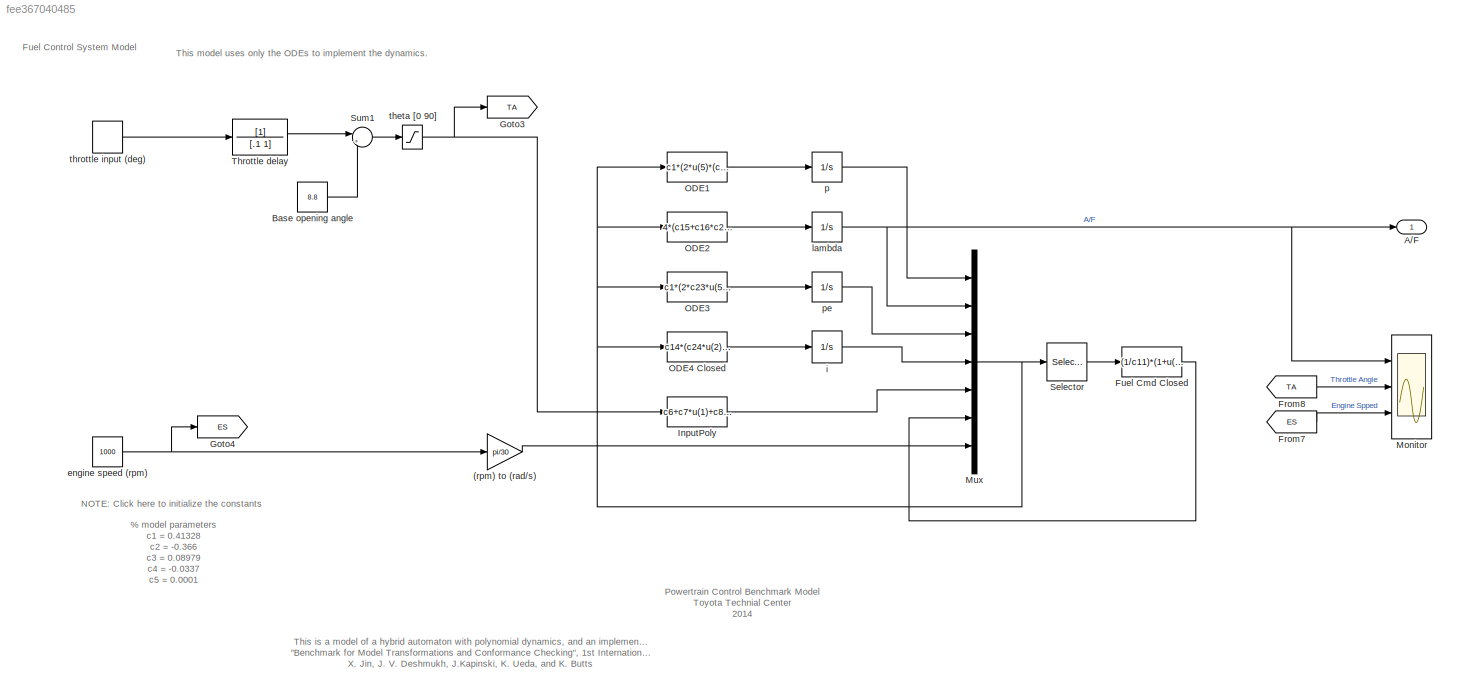
MODEL slx_fee367040485
KIND model
CONFIG AbsTol = 1e-6
CONFIG EnableMultiTasking = off
CONFIG FixedStep = .00005
CONFIG MaxStep = auto
CONFIG MinStep = auto
CONFIG RelTol = 1e-6
CONFIG SampleTimeConstraint = Unconstrained
CONFIG Solver = ode15s
CONFIG SolverName = ode15s
CONFIG StartTime = 0.0
CONFIG StopTime = 50
BLOCK [Gain] (rpm) to (rad//s)
  Gain = pi/30
  OutDataTypeStr = Inherit: Inherit via internal rule
  ParamDataTypeStr = Inherit: Inherit via internal rule
  SaturateOnIntegerOverflow = off
BLOCK [Outport] A//F
  IconDisplay = Port number
BLOCK [Constant] Base opening angle
  Value = 8.8
BLOCK [From] From7
  GotoTag = ES
BLOCK [From] From8
  GotoTag = TA
BLOCK [Fcn] Fuel Cmd Closed
  Expr = (1/c11)*(1+u(4)+c13*(c24*u(2)-c11))*(c2+c3*u(6)*u(3)+c4*u(6)*u(3)^2+c5*u(3)*u(6)^2)
BLOCK [Goto] Goto3
  GotoTag = TA
BLOCK [Goto] Goto4
  GotoTag = ES
BLOCK [Fcn] InputPoly
  Expr = c6+c7*u(1)+c8*u(1)^2+c9*u(1)^3
BLOCK [Scope] Monitor
  Floating = off
  NumInputPorts = 3
  Ports = [3]
  ScopeSpecificationString = C++SS(StrPVP('Location','[194, 875, 1419, 1499]'),StrPVP('Open','off'),StrPVP('ZoomMode','xonly'),MxPVP('AxesTitles',54,'struct(''axes1'',''%<SignalLabel>'',''axes2'',''%<SignalLabel>'',''axes3'',''%<SignalLabel>'')'),MxPVP('ScopeGraphics',57,'struct(''FigureColor'',''[0.501960784313725 0.501960784313725 0.501960784313725]'',''AxesColor'',''[0 0 0]'',''AxesTickColor'',''[1 1 1]'',''LineColors'',''...<+453ch>
BLOCK [Mux] Mux
  DisplayOption = bar
  Inputs = 7
  Ports = [7, 1]
BLOCK [Fcn] ODE1
  Expr = c1*(2*u(5)*(c20*u(1)^2+c21*u(1)+c22) - c12*(c2+c3*u(7)*u(1)+c4*u(7)*u(1)^2+c5*u(1)*u(7)^2))
BLOCK [Fcn] ODE2
  Expr = 4*(c15+c16*c25*u(6)+c17*c25^2*u(6)^2+c18*(c12*(c2+c3*u(7)*u(1)+c4*u(7)*u(1)^2+c5*u(1)*u(7)^2)) +c19*(c12*(c2+c3*u(7)*u(1)+c4*u(7)*u(1)^2+c5*u(1)*u(7)^2)) *c25*u(6)-u(2))
BLOCK [Fcn] ODE3
  Expr = c1*(2*c23*u(5)*(c20*u(1)^2+c21*u(1)+c22)-(c2+c3*u(7)*u(3)+c4*u(7)*u(3)^2+c5*u(3)*u(7)^2))
BLOCK [Fcn] ODE4 Closed
  Expr = c14*(c24*u(2)-c11)
BLOCK [Selector] Selector
  IndexOptions = Index vector (dialog)
  Indices = [1 2 3 4 5 7]
  InputPortWidth = 7
  OutputSizes = 1
  Ports = [1, 1]
BLOCK [Sum] Sum1
  IconShape = round
  InputSameDT = off
  Inputs = |++
  OutDataTypeStr = Inherit: Inherit via internal rule
  Ports = [2, 1]
  SaturateOnIntegerOverflow = off
BLOCK [TransferFcn] Throttle  delay
  Denominator = [.1 1]
BLOCK [Constant] engine speed (rpm)
  AttributesFormatString = %<Description>
  Description = [1000, 3000]
  Value = 1000
BLOCK [Integrator] i
  InitialCondition = 0.017
  Ports = [1, 1]
BLOCK [Integrator] lambda
  InitialCondition = 14.7
  Ports = [1, 1]
BLOCK [Integrator] p
  InitialCondition = 0.6353
  Ports = [1, 1]
BLOCK [Integrator] pe
  InitialCondition = 0.5573
  Ports = [1, 1]
BLOCK [Saturate] theta [0 90]
  InputPortMap = u0
  LowerLimit = 0
  Ports = [1, 1]
  UpperLimit = 90
BLOCK [DiscretePulseGenerator] throttle input (deg)
  Amplitude = 75.2996
  AttributesFormatString = %<Description>
  Description = [0, 81.2]
  Period = 15.7139
  PhaseDelay = 3
  Ports = [0, 1]
  PulseType = Time based
  PulseWidth = 50
ANNOTATION (root): % model parameters c1 = 0.41328 c2 = -0.366 c3 = 0.08979 c4 = -0.0337 c5 = 0.0001 c6 = 2.821 c7 = -0.05231 c8 = 0.10299 c9 = -0.00063 c10 = 1.0 c11 = 14.7 c12 = 0.9 c13 = 0.04 c14 = 0.14 % coefficients of polynomial approximations c15 = 13.893 c16 = -35.2518 c17 = 20.7364 c18 = 2.6287 c19 = -1.592 c20 = -2.3421 c21 = 2.7799 c22 = -0.3273 % sensors and actuatorerror factor c23 = 1.0 c24 = 1.0 c25 =...<+4ch>
ANNOTATION (root): Fuel Control System Model
ANNOTATION (root): NOTE: Click here to initialize the constants
ANNOTATION (root): Powertrain Control Benchmark Model Toyota Technial Center 2014
ANNOTATION (root): This is a model of a hybrid automaton with polynomial dynamics, and an implementation of the 2nd model that appears in "Benchmark for Model Transformations and Conformance Checking", 1st International Workshop on Applied Verification for Continuous and Hybrid Systems 2014, X. Jin, J. V. Deshmukh, J.Kapinski, K. Ueda, and K. Butts
ANNOTATION (root): This model uses only the ODEs to implement the dynamics.
LINE (rpm) to (rad//s):1 -> Mux:7
LINE Base opening angle:1 -> Sum1:2
LINE From7:1 -> Monitor:3
LINE From8:1 -> Monitor:2
LINE Fuel Cmd Closed:1 -> Mux:6
LINE InputPoly:1 -> Mux:5
NET Mux:1 -> ODE1:1, ODE2:1, ODE3:1, ODE4 Closed:1, Selector:1
LINE ODE1:1 -> p:1
LINE ODE2:1 -> lambda:1
LINE ODE3:1 -> pe:1
LINE ODE4 Closed:1 -> i:1
LINE Selector:1 -> Fuel Cmd Closed:1
LINE Sum1:1 -> theta [0 90]:1
LINE Throttle  delay:1 -> Sum1:1
NET engine speed (rpm):1 -> (rpm) to (rad//s):1, Goto4:1
LINE i:1 -> Mux:4
NET lambda:1 -> A//F:1, Monitor:1, Mux:2
LINE p:1 -> Mux:1
LINE pe:1 -> Mux:3
NET theta [0 90]:1 -> Goto3:1, InputPoly:1
LINE throttle input (deg):1 -> Throttle  delay:1
note: NET lines group one-source signal fan-out (src -> all destinations, sorted); 1:1 wires keep LINE
